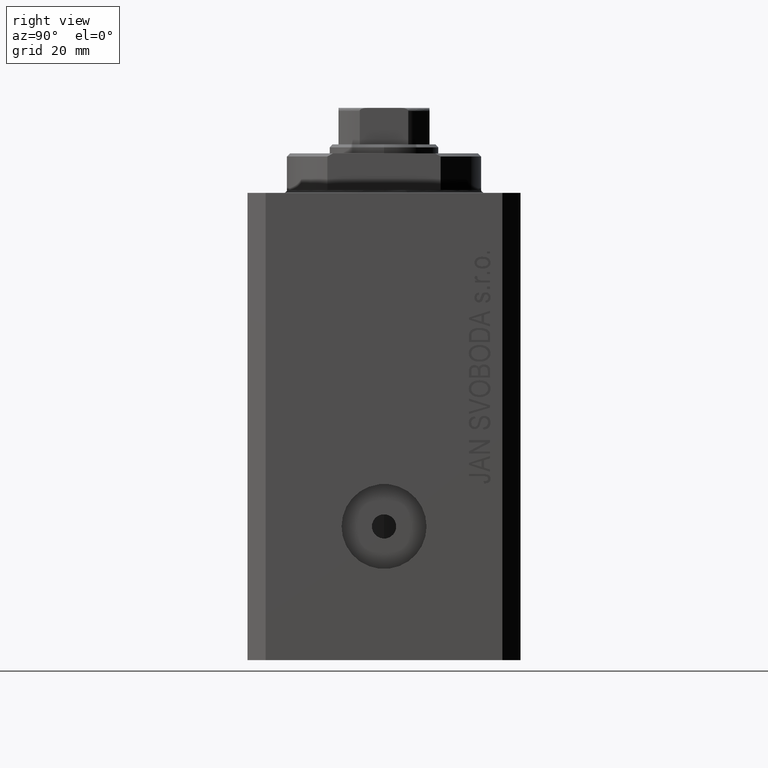
[diagram: clean part render]
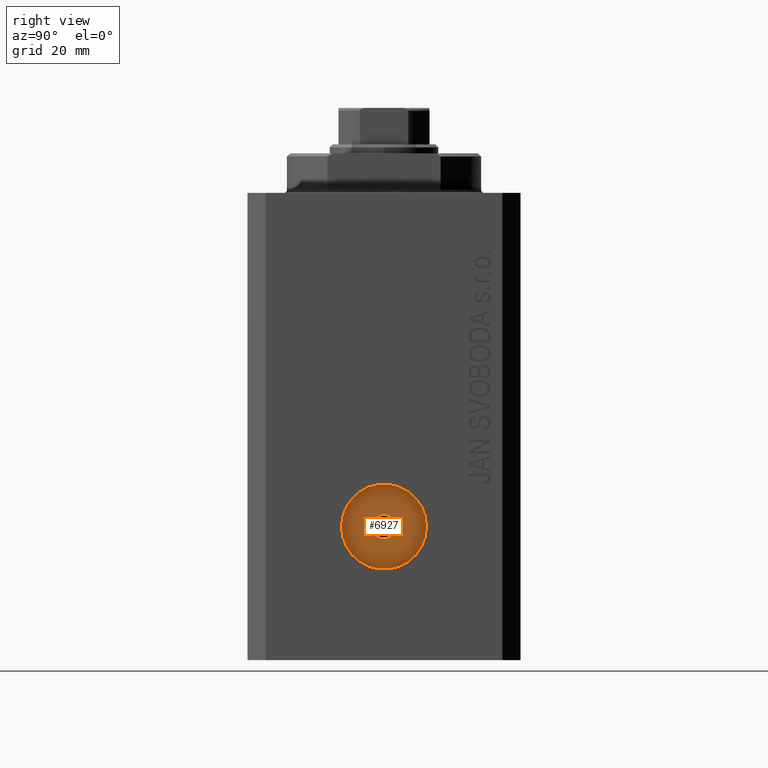
[diagram: same view with one face highlighted and labeled with its STEP entity id]
A machine part, right view. The second image highlights one B-rep face of the part: STEP entity #6927.
In plain terms, the highlighted planar face has unit normal (1, -0, 0).
Its self-contained STEP definition (entity closure, byte-faithful):
#194 = VERTEX_POINT ( 'NONE', #21154 ) ;
#660 = DIRECTION ( 'NONE',  ( 1.338215252896394112E-14, 1.000000000000000000, 0.000000000000000000 ) ) ;
#1078 = VERTEX_POINT ( 'NONE', #33171 ) ;
#2374 = CARTESIAN_POINT ( 'NONE',  ( 27.99999999999677414, 4.270088556253899177E-14, -55.00000000000000000 ) ) ;
#2986 = EDGE_CURVE ( 'NONE', #5694, #39361, #11403, .T. ) ;
#4585 = DIRECTION ( 'NONE',  ( 1.000000000000000000, -1.334402673828349134E-14, 0.000000000000000000 ) ) ;
#5194 = EDGE_LOOP ( 'NONE', ( #34041, #12363 ) ) ;
#5298 = DIRECTION ( 'NONE',  ( 1.000000000000000000, -1.334402673828349134E-14, 0.000000000000000000 ) ) ;
#5694 = VERTEX_POINT ( 'NONE', #22365 ) ;
#5876 = DIRECTION ( 'NONE',  ( 1.000000000000000000, -1.334402673828349134E-14, 0.000000000000000000 ) ) ;
#6101 = DIRECTION ( 'NONE',  ( 1.387778780781443467E-14, 1.000000000000000000, 0.000000000000000000 ) ) ;
#6266 = EDGE_CURVE ( 'NONE', #39361, #5694, #32387, .T. ) ;
#6719 = CIRCLE ( 'NONE', #31993, 2.000000000000003109 ) ;
#6927 = ADVANCED_FACE ( 'NONE', ( #43285, #29281 ), #36960, .T. ) ;
#8330 = CARTESIAN_POINT ( 'NONE',  ( 27.99999999999677414, 4.270088556253899177E-14, -55.00000000000000000 ) ) ;
#11403 = CIRCLE ( 'NONE', #36682, 7.000000000000000000 ) ;
#12080 = DIRECTION ( 'NONE',  ( 1.334402673828349134E-14, 1.000000000000000000, 0.000000000000000000 ) ) ;
#12129 = EDGE_LOOP ( 'NONE', ( #12232, #33671 ) ) ;
#12232 = ORIENTED_EDGE ( 'NONE', *, *, #26024, .F. ) ;
#12363 = ORIENTED_EDGE ( 'NONE', *, *, #6266, .T. ) ;
#12523 = CARTESIAN_POINT ( 'NONE',  ( 27.99999999999677414, 4.270088556253899177E-14, -55.00000000000000000 ) ) ;
#16153 = DIRECTION ( 'NONE',  ( 1.000000000000000000, -1.334402673828349134E-14, 0.000000000000000000 ) ) ;
#21154 = CARTESIAN_POINT ( 'NONE',  ( 27.99999999999680256, 2.000000000000045741, -55.00000000000000000 ) ) ;
#22365 = CARTESIAN_POINT ( 'NONE',  ( 27.99999999999686651, 7.000000000000042633, -55.00000000000000000 ) ) ;
#23389 = EDGE_CURVE ( 'NONE', #1078, #194, #6719, .T. ) ;
#24767 = CIRCLE ( 'NONE', #33457, 2.000000000000003109 ) ;
#24944 = DIRECTION ( 'NONE',  ( 1.387778780781443467E-14, 1.000000000000000000, 0.000000000000000000 ) ) ;
#26024 = EDGE_CURVE ( 'NONE', #194, #1078, #24767, .T. ) ;
#29281 = FACE_OUTER_BOUND ( 'NONE', #5194, .T. ) ;
#31993 = AXIS2_PLACEMENT_3D ( 'NONE', #35561, #4585, #24944 ) ;
#32387 = CIRCLE ( 'NONE', #42523, 7.000000000000000000 ) ;
#33169 = AXIS2_PLACEMENT_3D ( 'NONE', #2374, #16153, #12080 ) ;
#33171 = CARTESIAN_POINT ( 'NONE',  ( 27.99999999999674571, -1.999999999999960476, -55.00000000000000000 ) ) ;
#33457 = AXIS2_PLACEMENT_3D ( 'NONE', #36864, #5876, #6101 ) ;
#33573 = DIRECTION ( 'NONE',  ( 1.338215252896394112E-14, 1.000000000000000000, 0.000000000000000000 ) ) ;
#33671 = ORIENTED_EDGE ( 'NONE', *, *, #23389, .F. ) ;
#34041 = ORIENTED_EDGE ( 'NONE', *, *, #2986, .T. ) ;
#35561 = CARTESIAN_POINT ( 'NONE',  ( 27.99999999999677414, 4.270088556253900439E-14, -55.00000000000000000 ) ) ;
#36682 = AXIS2_PLACEMENT_3D ( 'NONE', #8330, #39314, #660 ) ;
#36864 = CARTESIAN_POINT ( 'NONE',  ( 27.99999999999677414, 4.270088556253900439E-14, -55.00000000000000000 ) ) ;
#36960 = PLANE ( 'NONE',  #33169 ) ;
#39314 = DIRECTION ( 'NONE',  ( 1.000000000000000000, -1.334402673828349134E-14, 0.000000000000000000 ) ) ;
#39361 = VERTEX_POINT ( 'NONE', #41371 ) ;
#41371 = CARTESIAN_POINT ( 'NONE',  ( 27.99999999999668177, -6.999999999999957367, -55.00000000000000000 ) ) ;
#42523 = AXIS2_PLACEMENT_3D ( 'NONE', #12523, #5298, #33573 ) ;
#43285 = FACE_BOUND ( 'NONE', #12129, .T. ) ;